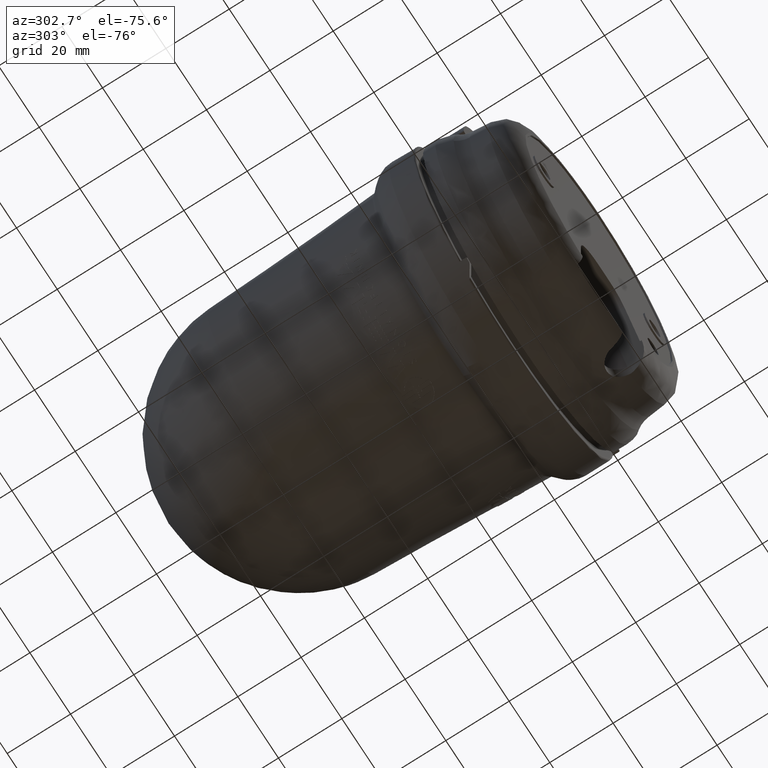
[diagram: clean part render]
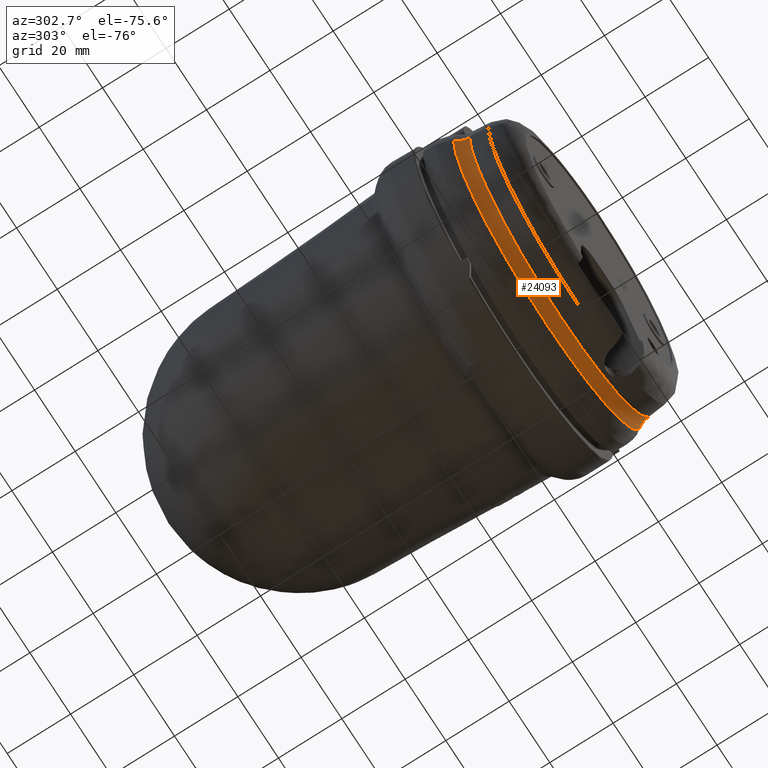
[diagram: same view with one face highlighted and labeled with its STEP entity id]
A machine part, auxiliary view. The second image highlights one B-rep face of the part: STEP entity #24093.
In plain terms, the highlighted toroidal blend (fillet) surface has major radius 52.565 mm and minor (blend) radius 8 mm.
Its self-contained STEP definition (entity closure, byte-faithful):
#656 = CARTESIAN_POINT ( 'NONE',  ( 0.0000000000000000000, 0.6518251277361236700, 0.0000000000000000000 ) ) ;
#1604 = DIRECTION ( 'NONE',  ( 2.865674657898685400E-017, 1.000000000000000000, 2.865674657898684800E-017 ) ) ;
#2001 = DIRECTION ( 'NONE',  ( 1.000000000000000000, 0.0000000000000000000, 1.224646799147354400E-016 ) ) ;
#3147 = DIRECTION ( 'NONE',  ( 0.0000000000000000000, 0.0000000000000000000, 1.000000000000000000 ) ) ;
#5099 = TOROIDAL_SURFACE ( 'NONE', #19760, 2.069488188976379200, 0.3149606299212597300 ) ;
#5778 = VERTEX_POINT ( 'NONE', #10139 ) ;
#6360 = CIRCLE ( 'NONE', #26815, 1.816240157480314600 ) ;
#6576 = CARTESIAN_POINT ( 'NONE',  ( 8.094329867485322600E-016, 0.4645669291338581100, 5.463695987328526400E-016 ) ) ;
#7021 = CARTESIAN_POINT ( 'NONE',  ( 3.022735376323166600E-016, 0.4920175567709161300, -2.908873826589035500E-017 ) ) ;
#8657 = CARTESIAN_POINT ( 'NONE',  ( -1.755726079341183100, 0.4920175567709161300, 5.494460269437587000E-016 ) ) ;
#9215 = ORIENTED_EDGE ( 'NONE', *, *, #31687, .F. ) ;
#9548 = DIRECTION ( 'NONE',  ( 0.0000000000000000000, 0.0000000000000000000, 1.000000000000000000 ) ) ;
#10139 = CARTESIAN_POINT ( 'NONE',  ( 1.755726079341183700, 0.4920175567709161300, 7.681658778730518000E-016 ) ) ;
#10904 = DIRECTION ( 'NONE',  ( 8.212091244922745200E-034, 2.865674657898684800E-017, -1.000000000000000000 ) ) ;
#11176 = CARTESIAN_POINT ( 'NONE',  ( 2.262040763405394000E-016, 0.6518251277361236700, -1.816240157480314600 ) ) ;
#11678 = DIRECTION ( 'NONE',  ( 0.0000000000000000000, 1.000000000000000000, 0.0000000000000000000 ) ) ;
#11781 = FACE_OUTER_BOUND ( 'NONE', #30129, .T. ) ;
#11947 = AXIS2_PLACEMENT_3D ( 'NONE', #656, #17999, #3147 ) ;
#11964 = CIRCLE ( 'NONE', #20103, 0.3149606299212598400 ) ;
#12217 = AXIS2_PLACEMENT_3D ( 'NONE', #25695, #10904, #28168 ) ;
#12867 = CARTESIAN_POINT ( 'NONE',  ( 3.022735376323166600E-016, 0.4920175567709161300, -2.908873826589035500E-017 ) ) ;
#13434 = AXIS2_PLACEMENT_3D ( 'NONE', #12867, #30127, #15347 ) ;
#13613 = CIRCLE ( 'NONE', #13434, 1.755726079341183300 ) ;
#14251 = ORIENTED_EDGE ( 'NONE', *, *, #20271, .T. ) ;
#14562 = CARTESIAN_POINT ( 'NONE',  ( -1.816240157480314600, 0.6518251277361236700, 5.517358094750353900E-016 ) ) ;
#15347 = DIRECTION ( 'NONE',  ( 0.0000000000000000000, 0.0000000000000000000, 1.000000000000000000 ) ) ;
#16066 = CIRCLE ( 'NONE', #21983, 1.755726079341183300 ) ;
#16083 = CIRCLE ( 'NONE', #11947, 1.816240157480314600 ) ;
#16712 = CARTESIAN_POINT ( 'NONE',  ( 2.150144323214440300E-016, 0.4920175567709161300, -1.755726079316464600 ) ) ;
#16864 = DIRECTION ( 'NONE',  ( -1.224646799147353200E-016, -2.865674657898684200E-017, 1.000000000000000000 ) ) ;
#17016 = EDGE_CURVE ( 'NONE', #28683, #26915, #18918, .T. ) ;
#17999 = DIRECTION ( 'NONE',  ( 0.0000000000000000000, 1.000000000000000000, 0.0000000000000000000 ) ) ;
#18918 = CIRCLE ( 'NONE', #12217, 0.3149606299212597300 ) ;
#19547 = VERTEX_POINT ( 'NONE', #16712 ) ;
#19760 = AXIS2_PLACEMENT_3D ( 'NONE', #6576, #1604, #23920 ) ;
#20103 = AXIS2_PLACEMENT_3D ( 'NONE', #31618, #16864, #2001 ) ;
#20271 = EDGE_CURVE ( 'NONE', #19547, #26915, #16066, .T. ) ;
#21983 = AXIS2_PLACEMENT_3D ( 'NONE', #7021, #24357, #9548 ) ;
#22605 = VERTEX_POINT ( 'NONE', #11176 ) ;
#23920 = DIRECTION ( 'NONE',  ( -1.000000000000000000, 2.865674657898685400E-017, 4.127728752263657500E-037 ) ) ;
#24093 = ADVANCED_FACE ( 'NONE', ( #11781 ), #5099, .F. ) ;
#24357 = DIRECTION ( 'NONE',  ( 0.0000000000000000000, 1.000000000000000000, -0.0000000000000000000 ) ) ;
#25026 = ORIENTED_EDGE ( 'NONE', *, *, #28633, .T. ) ;
#25263 = EDGE_CURVE ( 'NONE', #5778, #19547, #13613, .T. ) ;
#25593 = VERTEX_POINT ( 'NONE', #26605 ) ;
#25695 = CARTESIAN_POINT ( 'NONE',  ( -2.069488188976378300, 0.4645669291338582200, 5.463695987328526400E-016 ) ) ;
#26459 = CARTESIAN_POINT ( 'NONE',  ( 0.0000000000000000000, 0.6518251277361236700, 0.0000000000000000000 ) ) ;
#26605 = CARTESIAN_POINT ( 'NONE',  ( 1.816240157480315500, 0.6518251277361236700, 7.741610790091506100E-016 ) ) ;
#26616 = ORIENTED_EDGE ( 'NONE', *, *, #25263, .T. ) ;
#26815 = AXIS2_PLACEMENT_3D ( 'NONE', #26459, #11678, #28933 ) ;
#26915 = VERTEX_POINT ( 'NONE', #8657 ) ;
#28153 = ORIENTED_EDGE ( 'NONE', *, *, #17016, .F. ) ;
#28168 = DIRECTION ( 'NONE',  ( 0.0000000000000000000, 1.000000000000000000, 2.865674657898684800E-017 ) ) ;
#28633 = EDGE_CURVE ( 'NONE', #25593, #5778, #11964, .T. ) ;
#28683 = VERTEX_POINT ( 'NONE', #14562 ) ;
#28933 = DIRECTION ( 'NONE',  ( 0.0000000000000000000, 0.0000000000000000000, 1.000000000000000000 ) ) ;
#29295 = ORIENTED_EDGE ( 'NONE', *, *, #31859, .F. ) ;
#30127 = DIRECTION ( 'NONE',  ( 0.0000000000000000000, 1.000000000000000000, -0.0000000000000000000 ) ) ;
#30129 = EDGE_LOOP ( 'NONE', ( #29295, #25026, #26616, #14251, #28153, #9215 ) ) ;
#31618 = CARTESIAN_POINT ( 'NONE',  ( 2.069488188976380100, 0.4645669291338580500, 7.998088073831701800E-016 ) ) ;
#31687 = EDGE_CURVE ( 'NONE', #22605, #28683, #16083, .T. ) ;
#31859 = EDGE_CURVE ( 'NONE', #25593, #22605, #6360, .T. ) ;